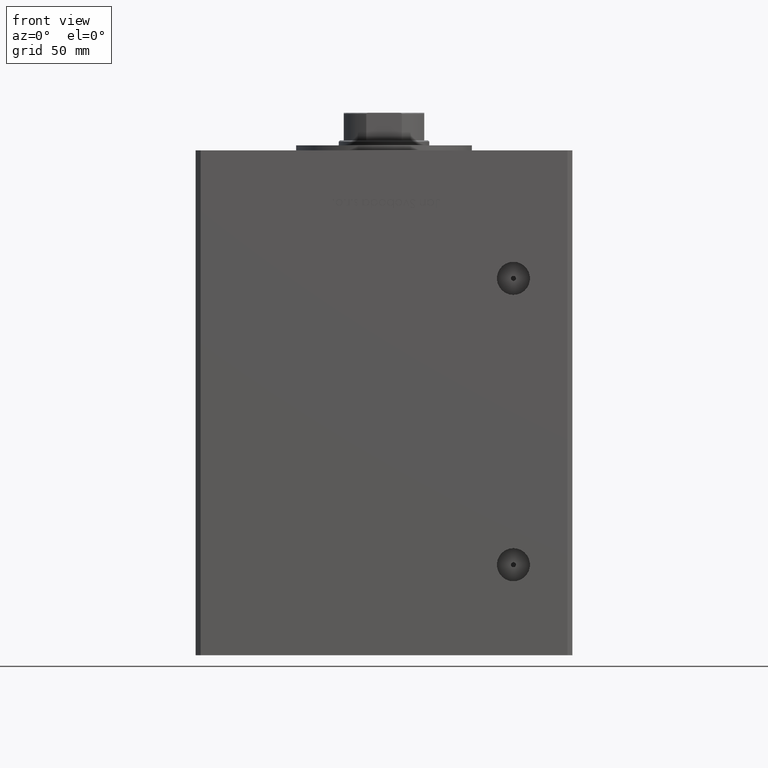
[diagram: clean part render]
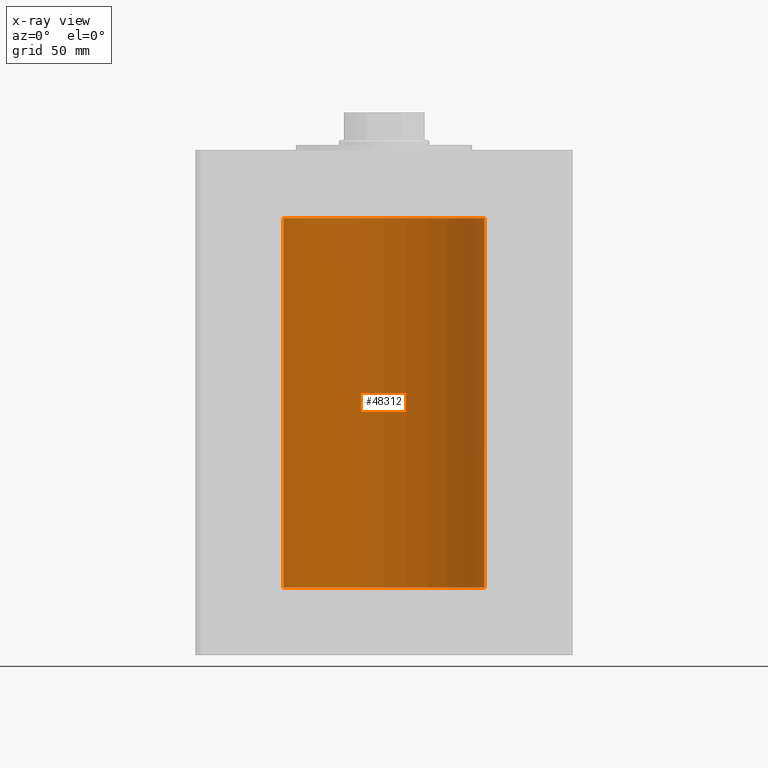
[diagram: x-ray — body ghosted, one internal face saturated and labeled with its STEP entity id]
A machine part, front view, then the same camera in x-ray: the body is ghosted and one INTERNAL B-rep face — a face not visible from any outside direction — is saturated and labeled: STEP entity #48312.
In plain terms, the highlighted cylindrical surface (partial cylindrical patch) has radius 40 mm, axis along (-0, -0, -1).
Its self-contained STEP definition (entity closure, byte-faithful):
#3181 = CARTESIAN_POINT ( 'NONE',  ( 0.000000000000000000, 0.000000000000000000, 0.000000000000000000 ) ) ;
#6752 = EDGE_CURVE ( 'NONE', #16694, #51187, #15763, .T. ) ;
#11177 = FACE_OUTER_BOUND ( 'NONE', #22891, .T. ) ;
#12278 = VECTOR ( 'NONE', #35684, 1000.000000000000000 ) ;
#12578 = CARTESIAN_POINT ( 'NONE',  ( -40.00000000000000000, 0.000000000000000000, 147.0000000000000000 ) ) ;
#13703 = CARTESIAN_POINT ( 'NONE',  ( 0.000000000000000000, 0.000000000000000000, 147.0000000000000000 ) ) ;
#13746 = AXIS2_PLACEMENT_3D ( 'NONE', #3181, #19270, #20298 ) ;
#15763 = LINE ( 'NONE', #52132, #26776 ) ;
#15902 = CYLINDRICAL_SURFACE ( 'NONE', #51061, 40.00000000000000000 ) ;
#15925 = LINE ( 'NONE', #31993, #12278 ) ;
#16694 = VERTEX_POINT ( 'NONE', #25422 ) ;
#18456 = ORIENTED_EDGE ( 'NONE', *, *, #45171, .T. ) ;
#19270 = DIRECTION ( 'NONE',  ( -0.000000000000000000, 0.000000000000000000, 1.000000000000000000 ) ) ;
#19865 = DIRECTION ( 'NONE',  ( -1.000000000000000000, 0.000000000000000000, 0.000000000000000000 ) ) ;
#20298 = DIRECTION ( 'NONE',  ( 1.000000000000000000, 0.000000000000000000, 0.000000000000000000 ) ) ;
#21432 = CARTESIAN_POINT ( 'NONE',  ( 40.00000000000000000, 4.898587196589413026E-15, 0.000000000000000000 ) ) ;
#22570 = CIRCLE ( 'NONE', #29286, 40.00000000000000000 ) ;
#22891 = EDGE_LOOP ( 'NONE', ( #41067, #23774, #18456, #40340 ) ) ;
#23040 = DIRECTION ( 'NONE',  ( -0.000000000000000000, -0.000000000000000000, -1.000000000000000000 ) ) ;
#23291 = CARTESIAN_POINT ( 'NONE',  ( 0.000000000000000000, 0.000000000000000000, 147.0000000000000000 ) ) ;
#23645 = VERTEX_POINT ( 'NONE', #12578 ) ;
#23774 = ORIENTED_EDGE ( 'NONE', *, *, #41123, .T. ) ;
#25422 = CARTESIAN_POINT ( 'NONE',  ( 40.00000000000000000, 4.898587196589413026E-15, 147.0000000000000000 ) ) ;
#26776 = VECTOR ( 'NONE', #43697, 1000.000000000000000 ) ;
#29286 = AXIS2_PLACEMENT_3D ( 'NONE', #13703, #41100, #41620 ) ;
#31083 = CARTESIAN_POINT ( 'NONE',  ( -40.00000000000000000, 0.000000000000000000, 0.000000000000000000 ) ) ;
#31512 = EDGE_CURVE ( 'NONE', #51187, #33310, #36448, .T. ) ;
#31993 = CARTESIAN_POINT ( 'NONE',  ( -40.00000000000000000, 0.000000000000000000, 147.0000000000000000 ) ) ;
#33310 = VERTEX_POINT ( 'NONE', #31083 ) ;
#35684 = DIRECTION ( 'NONE',  ( -0.000000000000000000, -0.000000000000000000, -1.000000000000000000 ) ) ;
#36448 = CIRCLE ( 'NONE', #13746, 40.00000000000000000 ) ;
#40340 = ORIENTED_EDGE ( 'NONE', *, *, #31512, .F. ) ;
#41067 = ORIENTED_EDGE ( 'NONE', *, *, #6752, .F. ) ;
#41100 = DIRECTION ( 'NONE',  ( -0.000000000000000000, 0.000000000000000000, 1.000000000000000000 ) ) ;
#41123 = EDGE_CURVE ( 'NONE', #16694, #23645, #22570, .T. ) ;
#41620 = DIRECTION ( 'NONE',  ( 1.000000000000000000, 0.000000000000000000, 0.000000000000000000 ) ) ;
#43697 = DIRECTION ( 'NONE',  ( -0.000000000000000000, -0.000000000000000000, -1.000000000000000000 ) ) ;
#45171 = EDGE_CURVE ( 'NONE', #23645, #33310, #15925, .T. ) ;
#48312 = ADVANCED_FACE ( 'NONE', ( #11177 ), #15902, .F. ) ;
#51061 = AXIS2_PLACEMENT_3D ( 'NONE', #23291, #23040, #19865 ) ;
#51187 = VERTEX_POINT ( 'NONE', #21432 ) ;
#52132 = CARTESIAN_POINT ( 'NONE',  ( 40.00000000000000000, 4.898587196589413026E-15, 147.0000000000000000 ) ) ;